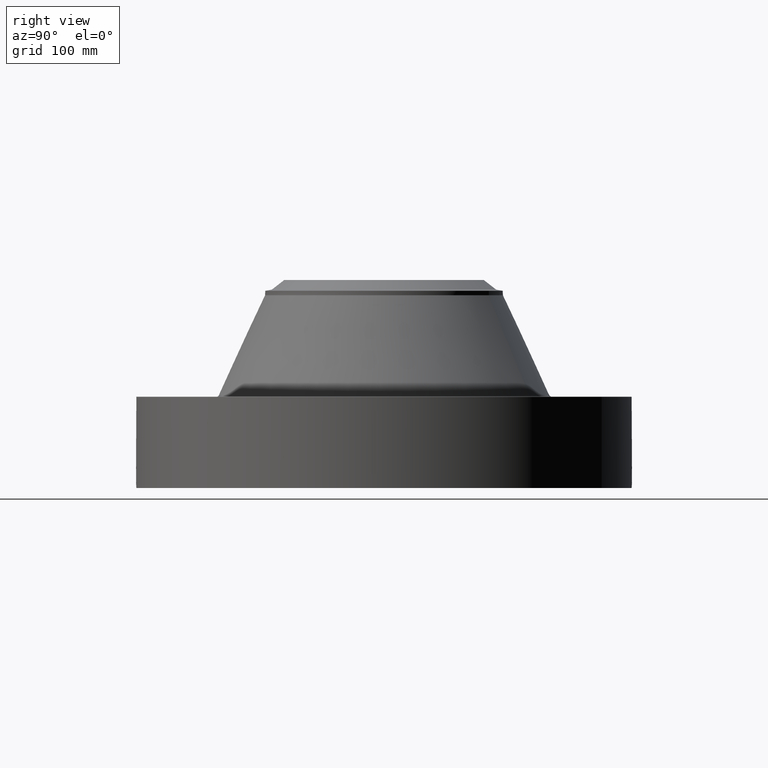
[diagram: clean part render]
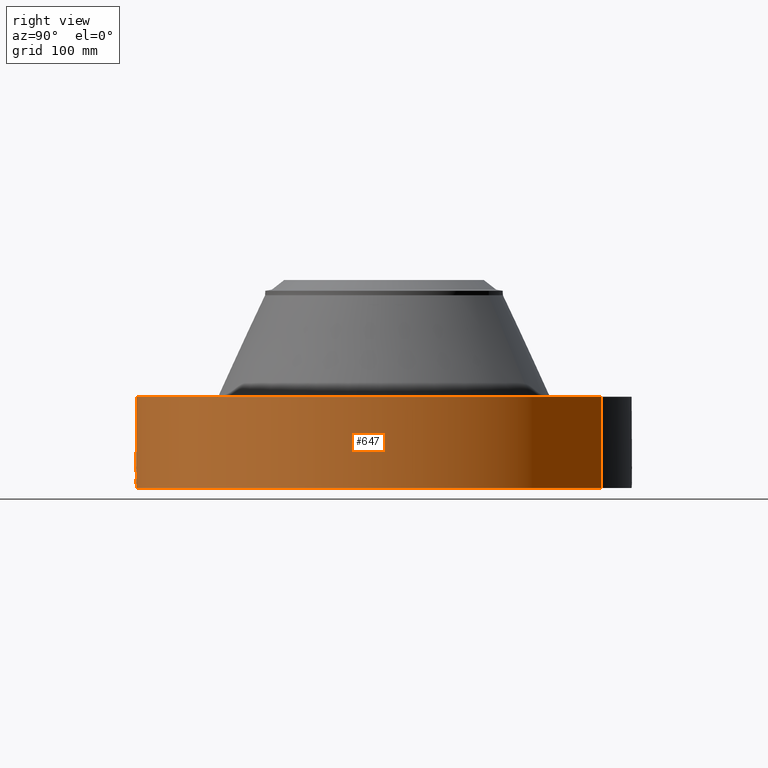
[diagram: same view with one face highlighted and labeled with its STEP entity id]
A machine part, right view. The second image highlights one B-rep face of the part: STEP entity #647.
In plain terms, the highlighted cylindrical surface (partial cylindrical patch) has radius 336.55 mm, axis along (0, 0, -1).
Its self-contained STEP definition (entity closure, byte-faithful):
#38=AXIS2_PLACEMENT_3D('Cylinder Axis2P3D',#35,#36,#37) ;
#169=AXIS2_PLACEMENT_3D('Circle Axis2P3D',#167,#168,$) ;
#551=AXIS2_PLACEMENT_3D('Circle Axis2P3D',#549,#550,$) ;
#35=CARTESIAN_POINT('Axis2P3D Location',(0.,0.,5.81000000002)) ;
#44=CARTESIAN_POINT('Vertex',(-6.35238838653,-11.6279689451,0.250000000001)) ;
#46=CARTESIAN_POINT('Vertex',(6.35238838653,11.6279689451,0.250000000001)) ;
#49=CARTESIAN_POINT('Line Origine',(-6.35238838653,-11.6279689451,2.69000000001)) ;
#53=CARTESIAN_POINT('Vertex',(-6.35238838653,-11.6279689451,5.13000000002)) ;
#60=CARTESIAN_POINT('Vertex',(6.35238838653,11.6279689451,5.13000000002)) ;
#63=CARTESIAN_POINT('Line Origine',(6.35238838653,11.6279689451,2.69000000001)) ;
#167=CARTESIAN_POINT('Axis2P3D Location',(0.,0.,0.250000000001)) ;
#549=CARTESIAN_POINT('Axis2P3D Location',(0.,0.,5.13000000002)) ;
#561=CARTESIAN_POINT('Control Point',(0.000716182179377,-13.2499999807,1.29411846097)) ;
#562=CARTESIAN_POINT('Control Point',(0.0191502653168,-13.2499989843,1.29408121945)) ;
#563=CARTESIAN_POINT('Control Point',(0.0375810939815,-13.2499592085,1.29260034336)) ;
#564=CARTESIAN_POINT('Control Point',(0.0557843614543,-13.2498825695,1.28969405279)) ;
#565=CARTESIAN_POINT('Vertex',(0.000715776774679,-13.2499999807,1.29411851031)) ;
#567=CARTESIAN_POINT('Vertex',(0.0557753377726,-13.2498828606,1.2896955122)) ;
#571=CARTESIAN_POINT('Control Point',(0.0557752409463,-13.2498826079,1.2896949601)) ;
#572=CARTESIAN_POINT('Control Point',(0.0960317888688,-13.2497131484,1.28519648012)) ;
#573=CARTESIAN_POINT('Control Point',(0.135627700013,-13.2493559782,1.27336881107)) ;
#574=CARTESIAN_POINT('Control Point',(0.172076085037,-13.2488825877,1.25501398008)) ;
#575=CARTESIAN_POINT('Vertex',(0.172076085037,-13.2488825877,1.25501398008)) ;
#579=CARTESIAN_POINT('Control Point',(0.0308574974484,-13.2499640685,0.531177487723)) ;
#580=CARTESIAN_POINT('Control Point',(0.100043950933,-13.249802942,0.53994175403)) ;
#581=CARTESIAN_POINT('Control Point',(0.166894350059,-13.2491956705,0.564145361276)) ;
#582=CARTESIAN_POINT('Control Point',(0.226589153244,-13.2482117099,0.602961853302)) ;
#583=CARTESIAN_POINT('Control Point',(0.299033939335,-13.2466912427,0.677002948627)) ;
#584=CARTESIAN_POINT('Control Point',(0.343806497774,-13.2455487155,0.76725296145)) ;
#585=CARTESIAN_POINT('Control Point',(0.35525800528,-13.2452407762,0.797964520641)) ;
#586=CARTESIAN_POINT('Control Point',(0.373767359905,-13.2447311356,0.869263562181)) ;
#587=CARTESIAN_POINT('Control Point',(0.375440893881,-13.2446781575,0.942604838015)) ;
#588=CARTESIAN_POINT('Control Point',(0.371062917438,-13.244805279,0.983230149875)) ;
#589=CARTESIAN_POINT('Control Point',(0.348620721247,-13.2454396498,1.07565637282)) ;
#590=CARTESIAN_POINT('Control Point',(0.299242591265,-13.2466708422,1.15702689299)) ;
#591=CARTESIAN_POINT('Control Point',(0.262809100423,-13.247490619,1.19795213549)) ;
#592=CARTESIAN_POINT('Control Point',(0.219645572182,-13.2482647566,1.23105873449)) ;
#593=CARTESIAN_POINT('Control Point',(0.172076085037,-13.2488825877,1.25501398008)) ;
#594=CARTESIAN_POINT('Vertex',(0.0308574974484,-13.2499640685,0.531177487723)) ;
#598=CARTESIAN_POINT('Control Point',(0.0308574974484,-13.2499640685,0.531177487723)) ;
#599=CARTESIAN_POINT('Control Point',(0.0205665787994,-13.2499880347,0.530872867649)) ;
#600=CARTESIAN_POINT('Control Point',(0.0102686489959,-13.2500000022,0.530938766678)) ;
#601=CARTESIAN_POINT('Control Point',(-2.72878355196E-006,-13.2500000001,0.531374667805)) ;
#602=CARTESIAN_POINT('Vertex',(-2.72878354359E-006,-13.2500000001,0.531374667805)) ;
#606=CARTESIAN_POINT('Control Point',(-0.192757893617,-13.2485978275,0.587169898879)) ;
#607=CARTESIAN_POINT('Control Point',(-0.149056428855,-13.2492336535,0.561897250206)) ;
#608=CARTESIAN_POINT('Control Point',(-0.101125994612,-13.2497395629,0.543730098777)) ;
#609=CARTESIAN_POINT('Control Point',(-0.0508093391961,-13.2499999896,0.533530819167)) ;
#610=CARTESIAN_POINT('Control Point',(-2.72878356373E-006,-13.2500000001,0.531374667805)) ;
#611=CARTESIAN_POINT('Vertex',(-0.192757893617,-13.2485978275,0.587169898879)) ;
#615=CARTESIAN_POINT('Control Point',(-0.192757893617,-13.2485978275,0.587169898879)) ;
#616=CARTESIAN_POINT('Control Point',(-0.24968121115,-13.2477696328,0.620088774011)) ;
#617=CARTESIAN_POINT('Control Point',(-0.299897745897,-13.2467332348,0.664307981488)) ;
#618=CARTESIAN_POINT('Control Point',(-0.340272602369,-13.2456768452,0.718329959253)) ;
#619=CARTESIAN_POINT('Control Point',(-0.384786930334,-13.2444230771,0.81640868139)) ;
#620=CARTESIAN_POINT('Control Point',(-0.393565265395,-13.2441521437,0.921704502706)) ;
#621=CARTESIAN_POINT('Control Point',(-0.391517982915,-13.2442146621,0.961814118149)) ;
#622=CARTESIAN_POINT('Control Point',(-0.377486119214,-13.2446358495,1.03665946445)) ;
#623=CARTESIAN_POINT('Control Point',(-0.345492049689,-13.2455094413,1.10505084845)) ;
#624=CARTESIAN_POINT('Control Point',(-0.326475931425,-13.246002738,1.13546988065)) ;
#625=CARTESIAN_POINT('Control Point',(-0.264616208065,-13.2474708185,1.21225153123)) ;
#626=CARTESIAN_POINT('Control Point',(-0.181234582893,-13.2489343562,1.26546431622)) ;
#627=CARTESIAN_POINT('Control Point',(-0.122123736333,-13.2496537486,1.28763376551)) ;
#628=CARTESIAN_POINT('Control Point',(-0.0605777054651,-13.2500001183,1.29712427101)) ;
#629=CARTESIAN_POINT('Control Point',(2.58579355407E-005,-13.25,1.2941529843)) ;
#630=CARTESIAN_POINT('Vertex',(2.5857935545E-005,-13.25,1.2941529843)) ;
#634=CARTESIAN_POINT('Control Point',(0.000715776764951,-13.2499999807,1.2941185103)) ;
#635=CARTESIAN_POINT('Control Point',(0.000370841803575,-13.2499999994,1.29413607037)) ;
#636=CARTESIAN_POINT('Control Point',(2.58579407351E-005,-13.25,1.2941529843)) ;
#36=DIRECTION('Axis2P3D Direction',(0.,0.,-0.0393700787402)) ;
#37=DIRECTION('Axis2P3D XDirection',(0.0188750212049,0.0345504945626,0.)) ;
#50=DIRECTION('Vector Direction',(0.,0.,-0.0393700787402)) ;
#64=DIRECTION('Vector Direction',(0.,0.,-0.0393700787402)) ;
#168=DIRECTION('Axis2P3D Direction',(0.,0.,-0.0393700787402)) ;
#550=DIRECTION('Axis2P3D Direction',(0.,0.,-0.0393700787402)) ;
#51=VECTOR('Line Direction',#50,0.0393700787402) ;
#65=VECTOR('Line Direction',#64,0.0393700787402) ;
#555=ORIENTED_EDGE('',*,*,#171,.F.) ;
#556=ORIENTED_EDGE('',*,*,#67,.T.) ;
#557=ORIENTED_EDGE('',*,*,#553,.T.) ;
#558=ORIENTED_EDGE('',*,*,#55,.F.) ;
#639=ORIENTED_EDGE('',*,*,#569,.T.) ;
#640=ORIENTED_EDGE('',*,*,#577,.T.) ;
#641=ORIENTED_EDGE('',*,*,#596,.F.) ;
#642=ORIENTED_EDGE('',*,*,#604,.T.) ;
#643=ORIENTED_EDGE('',*,*,#613,.F.) ;
#644=ORIENTED_EDGE('',*,*,#632,.T.) ;
#645=ORIENTED_EDGE('',*,*,#637,.F.) ;
#646=FACE_BOUND('',#638,.T.) ;
#647=ADVANCED_FACE('PartBody',(#559,#646),#39,.T.) ;
#560=B_SPLINE_CURVE_WITH_KNOTS('',3,(#561,#562,#563,#564),.UNSPECIFIED.,.F.,.U.,(4,4),(34.6164759241,36.6615629649),.UNSPECIFIED.) ;
#570=B_SPLINE_CURVE_WITH_KNOTS('',3,(#571,#572,#573,#574),.UNSPECIFIED.,.F.,.U.,(4,4),(0.,4.55152621392),.UNSPECIFIED.) ;
#578=B_SPLINE_CURVE_WITH_KNOTS('',5,(#579,#580,#581,#582,#583,#584,#585,#586,#587,#588,#589,#590,#591,#592,#593),.UNSPECIFIED.,.F.,.U.,(6,3,3,3,6),(0.,12.1199799921,17.9789266845,25.3567714456,35.2572454742),.UNSPECIFIED.) ;
#597=B_SPLINE_CURVE_WITH_KNOTS('',3,(#598,#599,#600,#601),.UNSPECIFIED.,.F.,.U.,(4,4),(0.,1.0734791093),.UNSPECIFIED.) ;
#605=B_SPLINE_CURVE_WITH_KNOTS('',4,(#606,#607,#608,#609,#610),.UNSPECIFIED.,.F.,.U.,(5,5),(0.,7.07984666739),.UNSPECIFIED.) ;
#614=B_SPLINE_CURVE_WITH_KNOTS('',5,(#615,#616,#617,#618,#619,#620,#621,#622,#623,#624,#625,#626,#627,#628,#629),.UNSPECIFIED.,.F.,.U.,(6,3,3,3,6),(0.,11.5273128197,18.5849259174,24.9929543164,36.3210179419),.UNSPECIFIED.) ;
#633=B_SPLINE_CURVE_WITH_KNOTS('',2,(#634,#635,#636),.UNSPECIFIED.,.F.,.U.,(3,3),(1.02660278465,1.05239664294),.UNSPECIFIED.) ;
#170=CIRCLE('generated circle',#169,13.2500000001) ;
#552=CIRCLE('generated circle',#551,13.2500000001) ;
#39=CYLINDRICAL_SURFACE('generated cylinder',#38,13.2500000001) ;
#55=EDGE_CURVE('',#45,#54,#52,.F.) ;
#67=EDGE_CURVE('',#47,#61,#66,.F.) ;
#171=EDGE_CURVE('',#47,#45,#170,.T.) ;
#553=EDGE_CURVE('',#61,#54,#552,.T.) ;
#569=EDGE_CURVE('',#566,#568,#560,.T.) ;
#577=EDGE_CURVE('',#568,#576,#570,.T.) ;
#596=EDGE_CURVE('',#595,#576,#578,.T.) ;
#604=EDGE_CURVE('',#595,#603,#597,.T.) ;
#613=EDGE_CURVE('',#612,#603,#605,.T.) ;
#632=EDGE_CURVE('',#612,#631,#614,.T.) ;
#637=EDGE_CURVE('',#566,#631,#633,.T.) ;
#554=EDGE_LOOP('',(#555,#556,#557,#558)) ;
#638=EDGE_LOOP('',(#639,#640,#641,#642,#643,#644,#645)) ;
#559=FACE_OUTER_BOUND('',#554,.T.) ;
#52=LINE('Line',#49,#51) ;
#66=LINE('Line',#63,#65) ;
#45=VERTEX_POINT('',#44) ;
#47=VERTEX_POINT('',#46) ;
#54=VERTEX_POINT('',#53) ;
#61=VERTEX_POINT('',#60) ;
#566=VERTEX_POINT('',#565) ;
#568=VERTEX_POINT('',#567) ;
#576=VERTEX_POINT('',#575) ;
#595=VERTEX_POINT('',#594) ;
#603=VERTEX_POINT('',#602) ;
#612=VERTEX_POINT('',#611) ;
#631=VERTEX_POINT('',#630) ;